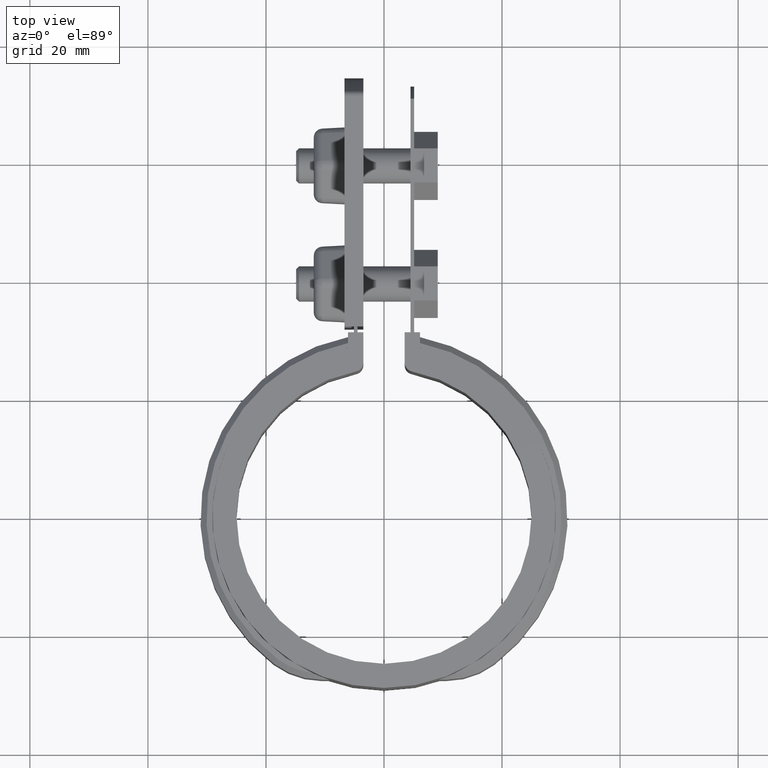
[diagram: clean part render]
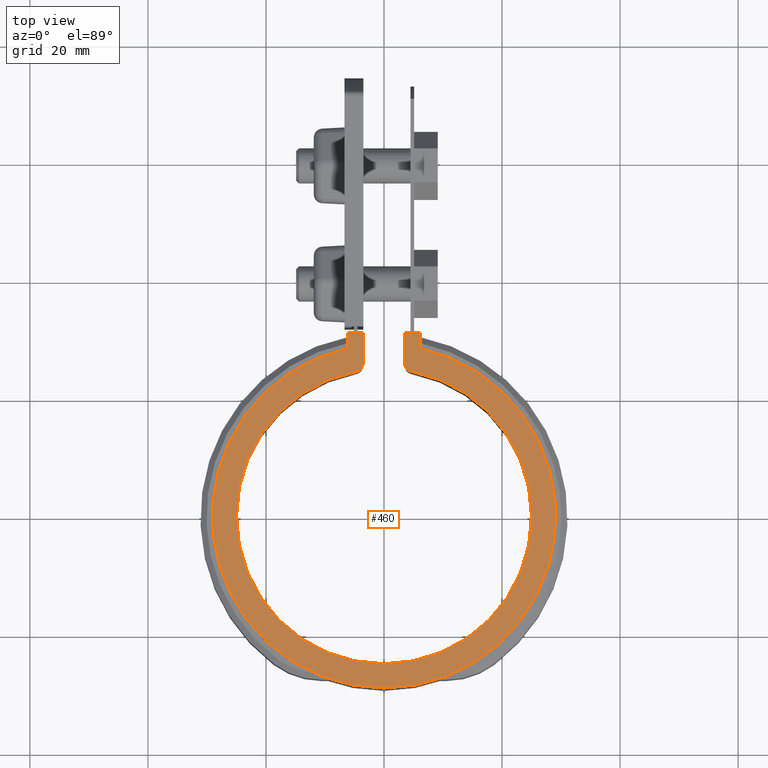
[diagram: same view with one face highlighted and labeled with its STEP entity id]
A machine part, top view. The second image highlights one B-rep face of the part: STEP entity #460.
In plain terms, the highlighted planar face has unit normal (0, 0, -1).
Its self-contained STEP definition (entity closure, byte-faithful):
#460 = ADVANCED_FACE( '', ( #932 ), #933, .F. );
#932 = FACE_OUTER_BOUND( '', #2278, .T. );
#933 = PLANE( '', #2279 );
#2278 = EDGE_LOOP( '', ( #4834, #4835, #4836, #4837, #4838, #4839, #4840, #4841, #4842, #4843 ) );
#2279 = AXIS2_PLACEMENT_3D( '', #4844, #4845, #4846 );
#4834 = ORIENTED_EDGE( '', *, *, #7524, .F. );
#4835 = ORIENTED_EDGE( '', *, *, #7525, .T. );
#4836 = ORIENTED_EDGE( '', *, *, #7515, .T. );
#4837 = ORIENTED_EDGE( '', *, *, #7352, .T. );
#4838 = ORIENTED_EDGE( '', *, *, #7526, .T. );
#4839 = ORIENTED_EDGE( '', *, *, #7527, .T. );
#4840 = ORIENTED_EDGE( '', *, *, #7528, .T. );
#4841 = ORIENTED_EDGE( '', *, *, #7506, .T. );
#4842 = ORIENTED_EDGE( '', *, *, #7514, .T. );
#4843 = ORIENTED_EDGE( '', *, *, #7529, .T. );
#4844 = CARTESIAN_POINT( '', ( -6.50000000000000, 27.7488738510232, 1.50000000000000 ) );
#4845 = DIRECTION( '', ( 0.000000000000000, 0.000000000000000, -1.00000000000000 ) );
#4846 = DIRECTION( '', ( 1.00000000000000, -6.04320994579262E-017, 0.000000000000000 ) );
#7352 = EDGE_CURVE( '', #8436, #8437, #8438, .T. );
#7506 = EDGE_CURVE( '', #8700, #8701, #8702, .T. );
#7514 = EDGE_CURVE( '', #8701, #8713, #8715, .T. );
#7515 = EDGE_CURVE( '', #8716, #8436, #8717, .T. );
#7524 = EDGE_CURVE( '', #8731, #8732, #8733, .F. );
#7525 = EDGE_CURVE( '', #8731, #8716, #8734, .F. );
#7526 = EDGE_CURVE( '', #8437, #8735, #8736, .T. );
#7527 = EDGE_CURVE( '', #8735, #8737, #8738, .T. );
#7528 = EDGE_CURVE( '', #8737, #8700, #8739, .T. );
#7529 = EDGE_CURVE( '', #8713, #8732, #8740, .F. );
#8436 = VERTEX_POINT( '', #11002 );
#8437 = VERTEX_POINT( '', #11003 );
#8438 = LINE( '', #11004, #11005 );
#8700 = VERTEX_POINT( '', #12197 );
#8701 = VERTEX_POINT( '', #12198 );
#8702 = LINE( '', #12199, #12200 );
#8713 = VERTEX_POINT( '', #12217 );
#8715 = LINE( '', #12220, #12221 );
#8716 = VERTEX_POINT( '', #12222 );
#8717 = LINE( '', #12223, #12224 );
#8731 = VERTEX_POINT( '', #12242 );
#8732 = VERTEX_POINT( '', #12243 );
#8733 = CIRCLE( '', #12244, 25.0000000000000 );
#8734 = CIRCLE( '', #12245, 1.50000000000000 );
#8735 = VERTEX_POINT( '', #12246 );
#8736 = LINE( '', #12247, #12248 );
#8737 = VERTEX_POINT( '', #12249 );
#8738 = CIRCLE( '', #12250, 29.0950000000000 );
#8739 = LINE( '', #12251, #12252 );
#8740 = CIRCLE( '', #12253, 1.50000000000000 );
#11002 = CARTESIAN_POINT( '', ( -3.49999999999999, 31.1900000000000, 1.50000000000000 ) );
#11003 = CARTESIAN_POINT( '', ( -6.10000000000003, 31.1900000000000, 1.50000000000000 ) );
#11004 = CARTESIAN_POINT( '', ( -3.50000000000000, 31.1900000000000, 1.50000000000000 ) );
#11005 = VECTOR( '', #14056, 1000.00000000000 );
#12197 = CARTESIAN_POINT( '', ( 6.09999999999997, 31.1900000000000, 1.50000000000000 ) );
#12198 = CARTESIAN_POINT( '', ( 3.50000000000002, 31.1900000000000, 1.50000000000000 ) );
#12199 = CARTESIAN_POINT( '', ( 4.50000000000001, 31.1900000000000, 1.50000000000000 ) );
#12200 = VECTOR( '', #14190, 1000.00000000000 );
#12217 = CARTESIAN_POINT( '', ( 3.50000000000000, 26.0240273593462, 1.50000000000000 ) );
#12220 = CARTESIAN_POINT( '', ( 3.50000000000000, 31.1900000000000, 1.50000000000000 ) );
#12221 = VECTOR( '', #14198, 1000.00000000000 );
#12222 = CARTESIAN_POINT( '', ( -3.49999999999999, 26.0240273593462, 1.50000000000000 ) );
#12223 = CARTESIAN_POINT( '', ( -3.49999999999999, 24.7487378466054, 1.50000000000000 ) );
#12224 = VECTOR( '', #14199, 1000.00000000000 );
#12242 = CARTESIAN_POINT( '', ( -4.71698113207546, 24.5509692069304, 1.50000000000000 ) );
#12243 = CARTESIAN_POINT( '', ( 4.71698113207547, 24.5509692069304, 1.50000000000000 ) );
#12244 = AXIS2_PLACEMENT_3D( '', #14216, #14217, #14218 );
#12245 = AXIS2_PLACEMENT_3D( '', #14219, #14220, #14221 );
#12246 = CARTESIAN_POINT( '', ( -6.10000000000003, 28.4483571581911, 1.50000000000000 ) );
#12247 = CARTESIAN_POINT( '', ( -6.10000000000003, 31.1900000000000, 1.50000000000000 ) );
#12248 = VECTOR( '', #14222, 1000.00000000000 );
#12249 = CARTESIAN_POINT( '', ( 6.09999999999998, 28.4483571581911, 1.50000000000000 ) );
#12250 = AXIS2_PLACEMENT_3D( '', #14223, #14224, #14225 );
#12251 = CARTESIAN_POINT( '', ( 6.09999999999997, 28.4483571581911, 1.50000000000000 ) );
#12252 = VECTOR( '', #14226, 1000.00000000000 );
#12253 = AXIS2_PLACEMENT_3D( '', #14227, #14228, #14229 );
#14056 = DIRECTION( '', ( -1.00000000000000, 0.000000000000000, 0.000000000000000 ) );
#14190 = DIRECTION( '', ( -1.00000000000000, 0.000000000000000, 0.000000000000000 ) );
#14198 = DIRECTION( '', ( -6.07153216591882E-017, -1.00000000000000, 0.000000000000000 ) );
#14199 = DIRECTION( '', ( 6.07153216591882E-017, 1.00000000000000, 0.000000000000000 ) );
#14216 = CARTESIAN_POINT( '', ( 0.000000000000000, 0.000000000000000, 1.50000000000000 ) );
#14217 = DIRECTION( '', ( 0.000000000000000, 0.000000000000000, -1.00000000000000 ) );
#14218 = DIRECTION( '', ( -1.00000000000000, 0.000000000000000, 0.000000000000000 ) );
#14219 = CARTESIAN_POINT( '', ( -4.99999999999999, 26.0240273593462, 1.50000000000000 ) );
#14220 = DIRECTION( '', ( 0.000000000000000, 0.000000000000000, -1.00000000000000 ) );
#14221 = DIRECTION( '', ( -1.00000000000000, 0.000000000000000, 0.000000000000000 ) );
#14222 = DIRECTION( '', ( -6.07153216591882E-017, -1.00000000000000, 0.000000000000000 ) );
#14223 = CARTESIAN_POINT( '', ( -4.33680868994202E-015, 0.000000000000000, 1.50000000000000 ) );
#14224 = DIRECTION( '', ( 0.000000000000000, 0.000000000000000, 1.00000000000000 ) );
#14225 = DIRECTION( '', ( 1.00000000000000, 5.85301484199875E-017, 0.000000000000000 ) );
#14226 = DIRECTION( '', ( 6.07153216591882E-017, 1.00000000000000, 0.000000000000000 ) );
#14227 = CARTESIAN_POINT( '', ( 5.00000000000000, 26.0240273593462, 1.50000000000000 ) );
#14228 = DIRECTION( '', ( 0.000000000000000, 0.000000000000000, -1.00000000000000 ) );
#14229 = DIRECTION( '', ( -1.00000000000000, 0.000000000000000, 0.000000000000000 ) );